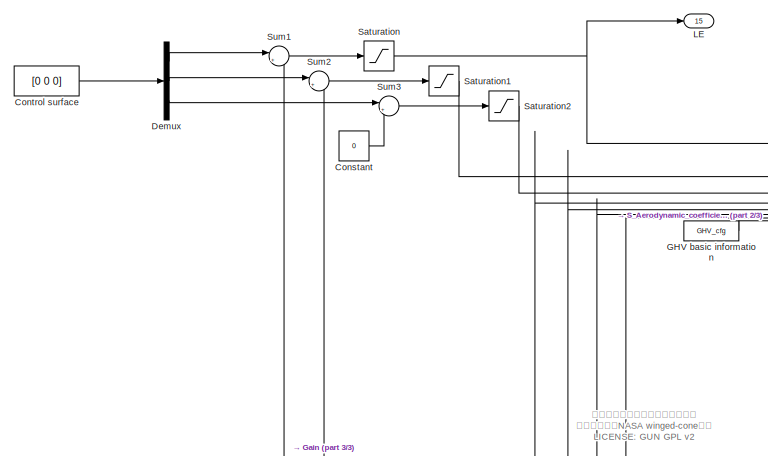
[diagram: root canvas - part 1/3, top left region]
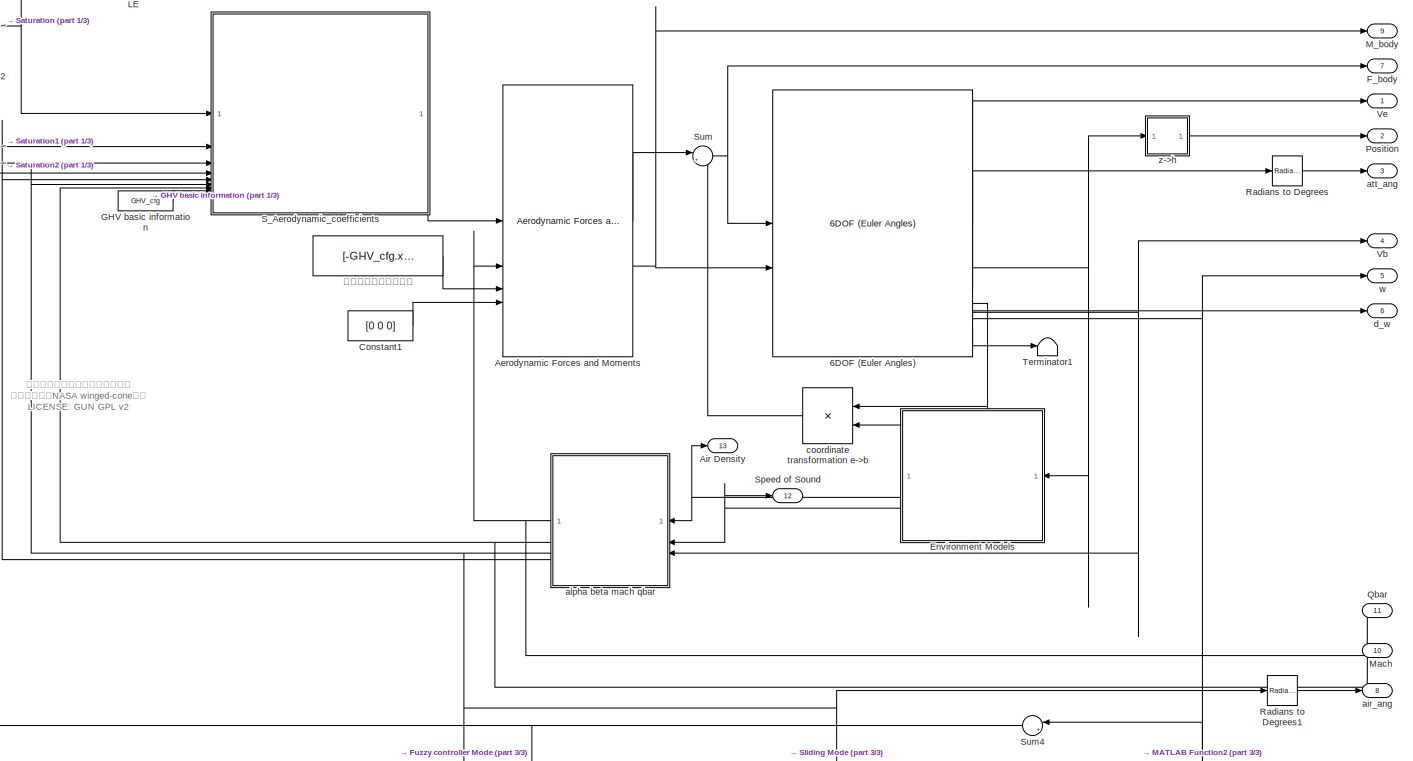
[diagram: root canvas - part 2/3, top center region]
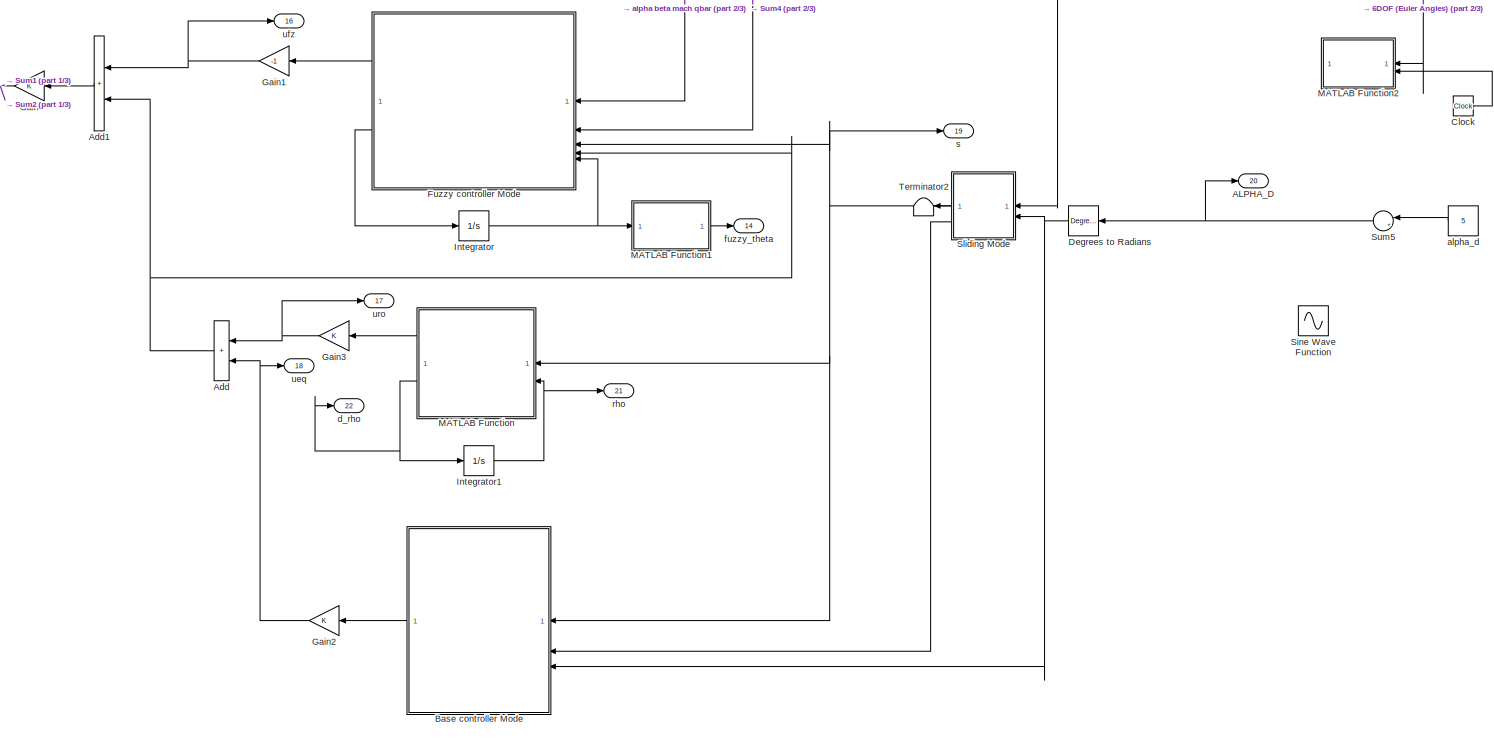
[diagram: root canvas - part 3/3, full width, bottom band]
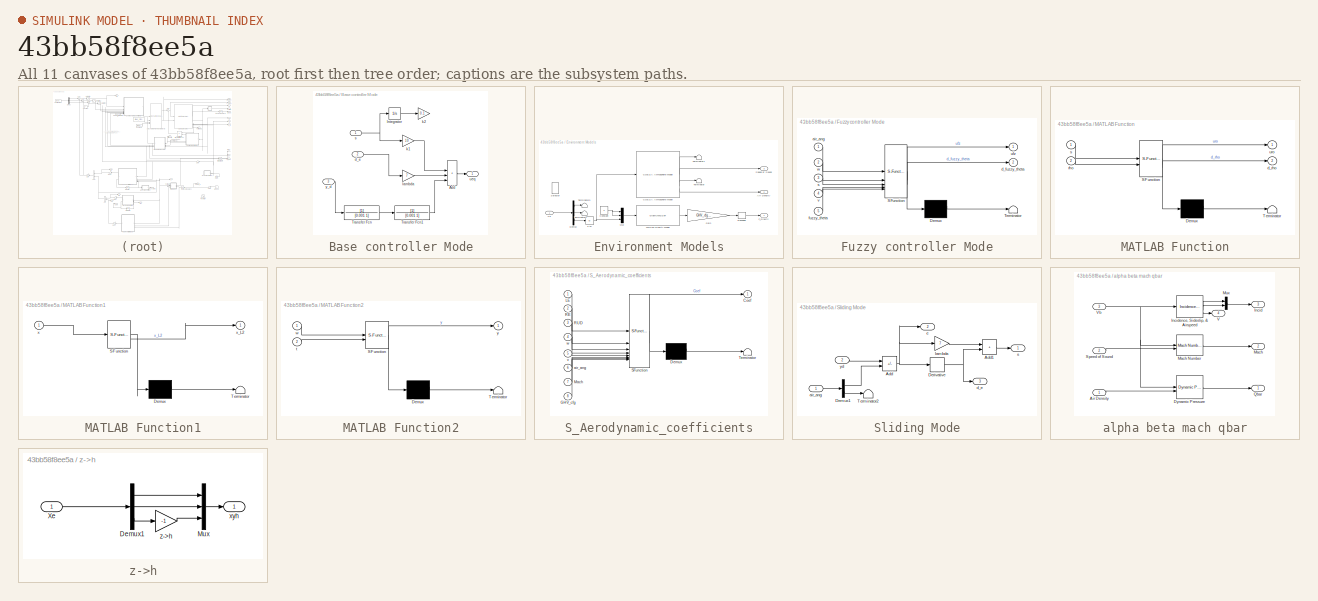
[diagram: thumbnail index - all 11 canvases of the model, root first then tree order]
MODEL slx_43bb58f8ee5a
KIND model
CONFIG AbsTol = auto
CONFIG EnableMultiTasking = off
CONFIG FixedStep = 0.0000001
CONFIG InitFcn = run('init.m')
CONFIG MaxStep = 0.001
CONFIG MinStep = auto
CONFIG RelTol = 1e-3
CONFIG SampleTimeConstraint = Unconstrained
CONFIG SolverName = VariableStepAuto
CONFIG StartTime = 0.0
CONFIG StopTime = 10
BLOCK [Reference] 6DOF (Euler Angles)  REF=shared6dof/6DOF (Euler Angles)
  LibrarySourceBlock = aerolib6dof2/6DOF (Euler Angles)
  SourceBlock = shared6dof/6DOF (Euler Angles)
  SourceType = 6DOF EoM (Body Axis)
BLOCK [Outport] ALPHA_D
  Port = 20
BLOCK [Sum] Add
  IconShape = rectangular
BLOCK [Sum] Add1
  IconShape = rectangular
BLOCK [Reference] Aerodynamic Forces and Moments   REF=aerolibadyn/Aerodynamic
Forces and Moments 
  SourceBlock = aerolibadyn/Aerodynamic\nForces and Moments
  SourceType = Aerodynamic Forces and Moments
BLOCK [Outport] Air Density
  Port = 13
BLOCK [SubSystem] Base controller Mode
BLOCK [Sum] Base controller Mode/Add
  IconShape = rectangular
  Inputs = ++++
BLOCK [Integrator] Base controller Mode/Integrator
BLOCK [TransferFcn] Base controller Mode/Transfer Fcn
  Denominator = [0.001 1]
BLOCK [TransferFcn] Base controller Mode/Transfer Fcn1
  Denominator = [0.001 1]
BLOCK [Inport] Base controller Mode/d_e
  Port = 2
BLOCK [Gain] Base controller Mode/k1
  Gain = 10
BLOCK [Gain] Base controller Mode/k2
  Gain = 0.1
BLOCK [Gain] Base controller Mode/lambda
  Gain = 7
BLOCK [Inport] Base controller Mode/s
BLOCK [Outport] Base controller Mode/ueq
BLOCK [Inport] Base controller Mode/y_d
  Port = 3
BLOCK [Clock] Clock
BLOCK [Constant] Constant
  Value = 0
BLOCK [Constant] Constant1
  Value = [0 0 0]
BLOCK [Constant] Control surface
  Value = [0 0 0]
BLOCK [Reference] Degrees to Radians  REF=simulink_extras/Transformations/Degrees to
Radians
  SourceBlock = simulink_extras/Transformations/Degrees to\nRadians
  SourceType = DegreesToRadians
BLOCK [Demux] Demux
  Outputs = 3
BLOCK [SubSystem] Environment Models
BLOCK [Outport] Environment Models/Air Density
  Port = 2
BLOCK [Reference] Environment Models/COESA Atmosphere Model  REF=aerolibatmos2/COESA Atmosphere Model
  SourceBlock = aerolibatmos2/COESA Atmosphere Model
  SourceType = Atmosphere Model
BLOCK [Constant] Environment Models/Constant
  Value = 0
BLOCK [Demux] Environment Models/Demux
  Outputs = 3
BLOCK [Outport] Environment Models/F_Gravity
BLOCK [Gain] Environment Models/Gain
  Gain = GHV_cfg.mass_full
BLOCK [Mux] Environment Models/Mux
  DisplayOption = bar
  Inputs = 3
BLOCK [Reshape] Environment Models/Reshape
BLOCK [Selector] Environment Models/Selector
  Commented = on
  IndexOptions = Index vector (dialog)
  Indices = [3]
  InputPortWidth = 3
  OutputSizes = 1
BLOCK [Outport] Environment Models/Speed of Sound
  Port = 3
BLOCK [Terminator] Environment Models/Terminator
BLOCK [Terminator] Environment Models/Terminator1
BLOCK [Terminator] Environment Models/Terminator2
BLOCK [Terminator] Environment Models/Terminator3
BLOCK [GravityWGS84] Environment Models/WGS84 Gravity Model  
  action = None
BLOCK [Inport] Environment Models/Xe
BLOCK [Abs] Environment Models/z->h
  SaturateOnIntegerOverflow = off
BLOCK [Outport] F_body
  Port = 7
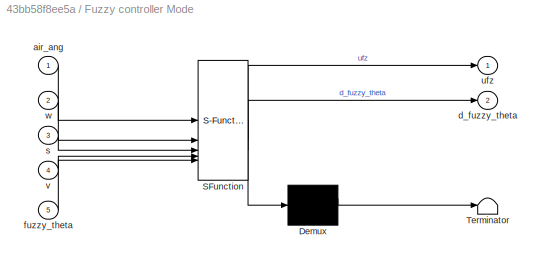
BLOCK [SubSystem] Fuzzy controller Mode
  ErrorFcn = Stateflow.Translate.translate
  PermitHierarchicalResolution = ExplicitOnly
  SFBlockType = MATLAB Function
  TreatAsAtomicUnit = on
BLOCK [Demux] Fuzzy controller Mode/ Demux 
  Outputs = 1
BLOCK [S-Function] Fuzzy controller Mode/ SFunction 
  EnableBusSupport = on
  FunctionName = sf_sfun
  PortCounts = [5 3]
  SFcnIsStateOwnerBlock = off
  SFunctionDeploymentMode = off
  Tag = Stateflow S-Function 1
BLOCK [Terminator] Fuzzy controller Mode/ Terminator 
BLOCK [Inport] Fuzzy controller Mode/air_ang
BLOCK [Outport] Fuzzy controller Mode/d_fuzzy_theta
  Port = 2
BLOCK [Inport] Fuzzy controller Mode/fuzzy_theta
  Port = 5
BLOCK [Inport] Fuzzy controller Mode/s
  Port = 3
BLOCK [Outport] Fuzzy controller Mode/ufz
BLOCK [Inport] Fuzzy controller Mode/v
  Port = 4
BLOCK [Inport] Fuzzy controller Mode/w
  Port = 2
BLOCK [Constant] GHV basic information
  OutDataTypeStr = Bus: slBus1
  Value = GHV_cfg
  VectorParams1D = off
BLOCK [Gain] Gain
BLOCK [Gain] Gain1
  Gain = -1
BLOCK [Gain] Gain2
BLOCK [Gain] Gain3
BLOCK [Integrator] Integrator
BLOCK [Integrator] Integrator1
BLOCK [Outport] LE
  Port = 15
BLOCK [SubSystem] MATLAB Function
  ErrorFcn = Stateflow.Translate.translate
  PermitHierarchicalResolution = ExplicitOnly
  SFBlockType = MATLAB Function
  TreatAsAtomicUnit = on
BLOCK [Demux] MATLAB Function/ Demux 
  Outputs = 1
BLOCK [S-Function] MATLAB Function/ SFunction 
  EnableBusSupport = on
  FunctionName = sf_sfun
  PortCounts = [2 3]
  SFcnIsStateOwnerBlock = off
  SFunctionDeploymentMode = off
  Tag = Stateflow S-Function 3
BLOCK [Terminator] MATLAB Function/ Terminator 
BLOCK [Outport] MATLAB Function/d_rho
  Port = 2
BLOCK [Inport] MATLAB Function/rho
  Port = 2
BLOCK [Inport] MATLAB Function/s
BLOCK [Outport] MATLAB Function/uro
BLOCK [SubSystem] MATLAB Function1
  ErrorFcn = Stateflow.Translate.translate
  PermitHierarchicalResolution = ExplicitOnly
  SFBlockType = MATLAB Function
  TreatAsAtomicUnit = on
BLOCK [Demux] MATLAB Function1/ Demux 
  Outputs = 1
BLOCK [S-Function] MATLAB Function1/ SFunction 
  EnableBusSupport = on
  FunctionName = sf_sfun
  PortCounts = [1 2]
  SFcnIsStateOwnerBlock = off
  SFunctionDeploymentMode = off
  Tag = Stateflow S-Function 4
BLOCK [Terminator] MATLAB Function1/ Terminator 
BLOCK [Inport] MATLAB Function1/x
BLOCK [Outport] MATLAB Function1/x_L2
BLOCK [SubSystem] MATLAB Function2
  ErrorFcn = Stateflow.Translate.translate
  PermitHierarchicalResolution = ExplicitOnly
  SFBlockType = MATLAB Function
  TreatAsAtomicUnit = on
BLOCK [Demux] MATLAB Function2/ Demux 
  Outputs = 1
BLOCK [S-Function] MATLAB Function2/ SFunction 
  EnableBusSupport = on
  FunctionName = sf_sfun
  PortCounts = [2 2]
  SFcnIsStateOwnerBlock = off
  SFunctionDeploymentMode = off
  Tag = Stateflow S-Function 5
BLOCK [Terminator] MATLAB Function2/ Terminator 
BLOCK [Inport] MATLAB Function2/t
  Port = 2
BLOCK [Inport] MATLAB Function2/w
BLOCK [Outport] MATLAB Function2/y
BLOCK [Outport] M_body
  Port = 9
BLOCK [Outport] Mach
  Port = 10
BLOCK [Outport] Position
  Port = 2
BLOCK [Outport] Qbar
  Port = 11
BLOCK [Reference] Radians to Degrees  REF=simulink_extras/Transformations/Radians
to Degrees
  SourceBlock = simulink_extras/Transformations/Radians\nto Degrees
  SourceType = RadiansToDegrees
BLOCK [Reference] Radians to Degrees1  REF=simulink_extras/Transformations/Radians
to Degrees
  SourceBlock = simulink_extras/Transformations/Radians\nto Degrees
  SourceType = RadiansToDegrees
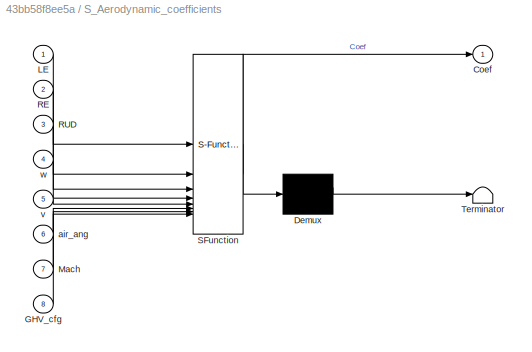
BLOCK [SubSystem] S_Aerodynamic_coefficients
  ErrorFcn = Stateflow.Translate.translate
  PermitHierarchicalResolution = ExplicitOnly
  SFBlockType = MATLAB Function
  TreatAsAtomicUnit = on
BLOCK [Demux] S_Aerodynamic_coefficients/ Demux 
  Outputs = 1
BLOCK [S-Function] S_Aerodynamic_coefficients/ SFunction 
  EnableBusSupport = on
  FunctionName = sf_sfun
  PortCounts = [8 2]
  SFcnIsStateOwnerBlock = off
  SFunctionDeploymentMode = off
  Tag = Stateflow S-Function 2
BLOCK [Terminator] S_Aerodynamic_coefficients/ Terminator 
BLOCK [Outport] S_Aerodynamic_coefficients/Coef
BLOCK [Inport] S_Aerodynamic_coefficients/GHV_cfg
  Port = 8
BLOCK [Inport] S_Aerodynamic_coefficients/LE
BLOCK [Inport] S_Aerodynamic_coefficients/Mach
  Port = 7
BLOCK [Inport] S_Aerodynamic_coefficients/RE
  Port = 2
BLOCK [Inport] S_Aerodynamic_coefficients/RUD
  Port = 3
BLOCK [Inport] S_Aerodynamic_coefficients/air_ang
  Port = 6
BLOCK [Inport] S_Aerodynamic_coefficients/v
  Port = 5
BLOCK [Inport] S_Aerodynamic_coefficients/w
  Port = 4
BLOCK [Saturate] Saturation
  LowerLimit = -30
  UpperLimit = 30
BLOCK [Saturate] Saturation1
  LowerLimit = -30
  UpperLimit = 30
BLOCK [Saturate] Saturation2
  LowerLimit = -30
  UpperLimit = 30
BLOCK [Sin] Sine Wave Function
  SampleTime = 0
BLOCK [SubSystem] Sliding Mode
BLOCK [Sum] Sliding Mode/Add
  IconShape = rectangular
  Inputs = +-
BLOCK [Sum] Sliding Mode/Add1
  IconShape = rectangular
BLOCK [Demux] Sliding Mode/Demux1
  Outputs = 2
BLOCK [Derivative] Sliding Mode/Derivative
BLOCK [Terminator] Sliding Mode/Terminator2
BLOCK [Inport] Sliding Mode/air_ang
BLOCK [Outport] Sliding Mode/d_e
  Port = 3
BLOCK [Outport] Sliding Mode/e
  Port = 2
BLOCK [Gain] Sliding Mode/lambda
  Gain = 7
BLOCK [Outport] Sliding Mode/s
BLOCK [Inport] Sliding Mode/yd
  Port = 2
BLOCK [Outport] Speed of Sound
  Port = 12
BLOCK [Sum] Sum
  Inputs = |++
BLOCK [Sum] Sum1
  Inputs = |++
BLOCK [Sum] Sum2
  Inputs = |++
BLOCK [Sum] Sum3
  Inputs = |++
BLOCK [Sum] Sum4
  Inputs = |++
BLOCK [Sum] Sum5
  Inputs = |++
BLOCK [Terminator] Terminator1
BLOCK [Terminator] Terminator2
BLOCK [Outport] Vb
  Port = 4
BLOCK [Outport] Ve
BLOCK [Outport] air_ang
  Port = 8
BLOCK [SubSystem] alpha beta mach qbar
BLOCK [Inport] alpha beta mach qbar/Air Density
BLOCK [Reference] alpha beta mach qbar/Dynamic Pressure  REF=aerolibasang/Dynamic Pressure
  SourceBlock = aerolibasang/Dynamic Pressure
  SourceType = Dynamic Pressure
BLOCK [Outport] alpha beta mach qbar/Incid
  Port = 3
BLOCK [Reference] alpha beta mach qbar/Incidence, Sideslip, & Airspeed  REF=aerolibasang/Incidence, Sideslip,
& Airspeed
  SourceBlock = aerolibasang/Incidence, Sideslip,\n& Airspeed
  SourceType = Incidence,Sideslip,&Airspeed
BLOCK [Outport] alpha beta mach qbar/Mach
  Port = 2
BLOCK [Reference] alpha beta mach qbar/Mach Number  REF=aerolibasang/Mach Number
  SourceBlock = aerolibasang/Mach Number
  SourceType = Mach Number
BLOCK [Mux] alpha beta mach qbar/Mux
  DisplayOption = bar
  Inputs = 2
BLOCK [Outport] alpha beta mach qbar/Qbar
BLOCK [Inport] alpha beta mach qbar/Speed of Sound
  Port = 2
BLOCK [Outport] alpha beta mach qbar/V
  Port = 4
BLOCK [Inport] alpha beta mach qbar/Vb
  Port = 3
BLOCK [Constant] alpha_d
  Value = 5
BLOCK [Outport] att_ang
  Port = 3
BLOCK [Product] coordinate transformation e->b
  Multiplication = Matrix(*)
BLOCK [Outport] d_rho
  Port = 22
BLOCK [Outport] d_w
  Port = 6
BLOCK [Outport] fuzzy_theta
  Port = 14
BLOCK [Outport] rho
  Port = 21
BLOCK [Outport] s
  Port = 19
BLOCK [Outport] ueq
  Port = 18
BLOCK [Outport] ufz
  Port = 16
BLOCK [Outport] uro
  Port = 17
BLOCK [Outport] w
  Port = 5
BLOCK [SubSystem] z->h
BLOCK [Demux] z->h/Demux1
  Outputs = 3
BLOCK [Mux] z->h/Mux
  DisplayOption = bar
  Inputs = 3
BLOCK [Inport] z->h/Xe
BLOCK [Outport] z->h/xyh
BLOCK [Gain] z->h/z->h
  Gain = -1
BLOCK [Constant] 力矩中心到质心的距离
  Value = [-GHV_cfg.x_cg 0 0 ]
ANNOTATION (root): 高超声速飞行器六自由度仿真平台 飞行器模型为NASA winged-cone模型 LICENSE: GUN GPL v2
LINE 6DOF (Euler Angles):1 -> Ve:1
NET 6DOF (Euler Angles):2 -> Environment Models:1, z->h:1
LINE 6DOF (Euler Angles):3 -> Radians to Degrees:1
LINE 6DOF (Euler Angles):4 -> coordinate transformation e->b:1
NET 6DOF (Euler Angles):5 -> Vb:1, alpha beta mach qbar:3
NET 6DOF (Euler Angles):6 -> MATLAB Function2:1, Sum4:1, w:1
LINE 6DOF (Euler Angles):7 -> d_w:1
LINE 6DOF (Euler Angles):8 -> Terminator1:1
LINE Add1:1 -> Gain:1
NET Add:1 -> Add1:2, Fuzzy controller Mode:4
LINE Aerodynamic Forces and Moments :1 -> Sum:1
NET Aerodynamic Forces and Moments :2 -> 6DOF (Euler Angles):2, M_body:1
LINE Base controller Mode/Add:1 -> Base controller Mode/ueq:1
LINE Base controller Mode/Integrator:1 -> Base controller Mode/k2:1
LINE Base controller Mode/Transfer Fcn1:1 -> Base controller Mode/Add:4
LINE Base controller Mode/Transfer Fcn:1 -> Base controller Mode/Transfer Fcn1:1
LINE Base controller Mode/d_e:1 -> Base controller Mode/lambda:1
LINE Base controller Mode/k1:1 -> Base controller Mode/Add:2
LINE Base controller Mode/lambda:1 -> Base controller Mode/Add:3
NET Base controller Mode/s:1 -> Base controller Mode/Integrator:1, Base controller Mode/k1:1
LINE Base controller Mode/y_d:1 -> Base controller Mode/Transfer Fcn:1
LINE Base controller Mode:1 -> Gain2:1
LINE Clock:1 -> MATLAB Function2:2
LINE Constant1:1 -> Aerodynamic Forces and Moments :4
LINE Constant:1 -> Sum3:2
LINE Control surface:1 -> Demux:1
NET Degrees to Radians:1 -> Base controller Mode:3, Sliding Mode:2
LINE Demux:1 -> Sum1:1
LINE Demux:2 -> Sum2:1
LINE Demux:3 -> Sum3:1
LINE Environment Models/COESA Atmosphere Model:1 -> Environment Models/Terminator1:1
LINE Environment Models/COESA Atmosphere Model:2 -> Environment Models/Speed of Sound:1
LINE Environment Models/COESA Atmosphere Model:3 -> Environment Models/Terminator:1
LINE Environment Models/COESA Atmosphere Model:4 -> Environment Models/Air Density:1
NET Environment Models/Constant:1 -> Environment Models/Mux:1, Environment Models/Mux:2
LINE Environment Models/Demux:1 -> Environment Models/Terminator3:1
LINE Environment Models/Demux:2 -> Environment Models/Terminator2:1
LINE Environment Models/Demux:3 -> Environment Models/z->h:1
LINE Environment Models/Gain:1 -> Environment Models/Reshape:1
LINE Environment Models/Mux:1 -> Environment Models/WGS84 Gravity Model  :1
LINE Environment Models/Reshape:1 -> Environment Models/F_Gravity:1
LINE Environment Models/WGS84 Gravity Model  :1 -> Environment Models/Gain:1
LINE Environment Models/Xe:1 -> Environment Models/Demux:1
NET Environment Models/z->h:1 -> Environment Models/COESA Atmosphere Model:1, Environment Models/Mux:3
LINE Environment Models:1 -> coordinate transformation e->b:2
NET Environment Models:2 -> Air Density:1, alpha beta mach qbar:1
NET Environment Models:3 -> Speed of Sound:1, alpha beta mach qbar:2
LINE Fuzzy controller Mode:1 -> Gain1:1
LINE Fuzzy controller Mode:2 -> Integrator:1
LINE GHV basic information:1 -> S_Aerodynamic_coefficients:8
NET Gain1:1 -> Add1:1, ufz:1
NET Gain2:1 -> Add:2, ueq:1
NET Gain3:1 -> Add:1, uro:1
NET Gain:1 -> Sum1:2, Sum2:2
NET Integrator1:1 -> MATLAB Function:2, rho:1
NET Integrator:1 -> Fuzzy controller Mode:5, MATLAB Function1:1
LINE MATLAB Function1:1 -> fuzzy_theta:1
LINE MATLAB Function:1 -> Gain3:1
NET MATLAB Function:2 -> Integrator1:1, d_rho:1
LINE Radians to Degrees1:1 -> air_ang:1
LINE Radians to Degrees:1 -> att_ang:1
LINE S_Aerodynamic_coefficients:1 -> Aerodynamic Forces and Moments :1
LINE Saturation1:1 -> S_Aerodynamic_coefficients:2
LINE Saturation2:1 -> S_Aerodynamic_coefficients:3
NET Saturation:1 -> LE:1, S_Aerodynamic_coefficients:1
LINE Sliding Mode/Add1:1 -> Sliding Mode/s:1
NET Sliding Mode/Add:1 -> Sliding Mode/Derivative:1, Sliding Mode/e:1, Sliding Mode/lambda:1
LINE Sliding Mode/Demux1:1 -> Sliding Mode/Add:2
LINE Sliding Mode/Demux1:2 -> Sliding Mode/Terminator2:1
NET Sliding Mode/Derivative:1 -> Sliding Mode/Add1:2, Sliding Mode/d_e:1
LINE Sliding Mode/air_ang:1 -> Sliding Mode/Demux1:1
LINE Sliding Mode/lambda:1 -> Sliding Mode/Add1:1
LINE Sliding Mode/yd:1 -> Sliding Mode/Add:1
NET Sliding Mode:1 -> Base controller Mode:1, Fuzzy controller Mode:3, MATLAB Function:1, s:1
LINE Sliding Mode:2 -> Terminator2:1
LINE Sliding Mode:3 -> Base controller Mode:2
LINE Sum1:1 -> Saturation:1
LINE Sum2:1 -> Saturation1:1
LINE Sum3:1 -> Saturation2:1
NET Sum4:1 -> Fuzzy controller Mode:2, S_Aerodynamic_coefficients:4
NET Sum5:1 -> ALPHA_D:1, Degrees to Radians:1
NET Sum:1 -> 6DOF (Euler Angles):1, F_body:1
LINE alpha beta mach qbar/Air Density:1 -> alpha beta mach qbar/Dynamic Pressure:2
LINE alpha beta mach qbar/Dynamic Pressure:1 -> alpha beta mach qbar/Qbar:1
LINE alpha beta mach qbar/Incidence, Sideslip, & Airspeed:1 -> alpha beta mach qbar/Mux:1
LINE alpha beta mach qbar/Incidence, Sideslip, & Airspeed:2 -> alpha beta mach qbar/Mux:2
LINE alpha beta mach qbar/Incidence, Sideslip, & Airspeed:3 -> alpha beta mach qbar/V:1
LINE alpha beta mach qbar/Mach Number:1 -> alpha beta mach qbar/Mach:1
LINE alpha beta mach qbar/Mux:1 -> alpha beta mach qbar/Incid:1
LINE alpha beta mach qbar/Speed of Sound:1 -> alpha beta mach qbar/Mach Number:2
NET alpha beta mach qbar/Vb:1 -> alpha beta mach qbar/Dynamic Pressure:1, alpha beta mach qbar/Incidence, Sideslip, & Airspeed:1, alpha beta mach qbar/Mach Number:1
NET alpha beta mach qbar:1 -> Aerodynamic Forces and Moments :2, Qbar:1
NET alpha beta mach qbar:2 -> Mach:1, S_Aerodynamic_coefficients:7
NET alpha beta mach qbar:3 -> Fuzzy controller Mode:1, Radians to Degrees1:1, S_Aerodynamic_coefficients:6, Sliding Mode:1
LINE alpha beta mach qbar:4 -> S_Aerodynamic_coefficients:5
LINE alpha_d:1 -> Sum5:1
LINE coordinate transformation e->b:1 -> Sum:2
LINE z->h/Demux1:1 -> z->h/Mux:1
LINE z->h/Demux1:2 -> z->h/Mux:2
LINE z->h/Demux1:3 -> z->h/z->h:1
LINE z->h/Mux:1 -> z->h/xyh:1
LINE z->h/Xe:1 -> z->h/Demux1:1
LINE z->h/z->h:1 -> z->h/Mux:3
LINE z->h:1 -> Position:1
LINE 力矩中心到质心的距离:1 -> Aerodynamic Forces and Moments :3
note: NET lines group one-source signal fan-out (src -> all destinations, sorted); 1:1 wires keep LINE
CHART Fuzzy controller Mode states=1 transitions=1
  STATE_LABEL 'eML_blk_kernel()'
  STATE_LABEL 'SCRIPT:\nfunction [ufz, d_fuzzy_theta] = S_fuzzy_adaptive_controller(air_ang, w, s, v, fuzzy_theta )\n    % ufz = zeros(1,1);\n    [ufz, d_fuzzy_theta] = fuzzy_adaptive_controller(air_ang, w, v, fuzzy_theta, s);\n\nend\n'
CHART S_Aerodynamic_coefficients states=1 transitions=1
  STATE_LABEL 'eML_blk_kernel()'
  STATE_LABEL 'SCRIPT:\nfunction Coef = S_Aerodynamic_coefficients(LE, RE, RUD, w, v, air_ang, Mach, GHV_cfg)\n    Coef = zeros(6, 1);\n    Coef = Aerodynamic_coefficients(LE, RE, RUD, air_ang, v, w, Mach, GHV_cfg);\n\nend\n'
CHART MATLAB Function states=1 transitions=1
  STATE_LABEL 'eML_blk_kernel()'
  STATE_LABEL 'SCRIPT:\nfunction [uro, d_rho] = S_robust_control(s, rho)\n     [d_rho, uro] = robust_control(s, rho);\nend\n'
CHART MATLAB Function1 states=1 transitions=1
  STATE_LABEL 'eML_blk_kernel()'
  STATE_LABEL 'SCRIPT:\nfunction x_L2 = S_L2Norm(x)\n     x_L2 = L2Norm(x);\nend\n'
CHART MATLAB Function2 states=1 transitions=1
  STATE_LABEL 'eML_blk_kernel()'
  STATE_LABEL 'SCRIPT:\nfunction y = fcn(w,t)\n         wx = w(1, 1); %读取x轴机体角速度\n        wy = w(2, 1); %读取y轴机体角速度\n        wz = w(3, 1); %读取z轴机体角速度\n        u = 3*sin(wy)*cos(t);\n        y = [wx;u;wz];\nend'
CHART  states=0 transitions=0
CHART  states=0 transitions=0
CHART  states=0 transitions=0
CHART  states=0 transitions=0
CHART  states=0 transitions=0
